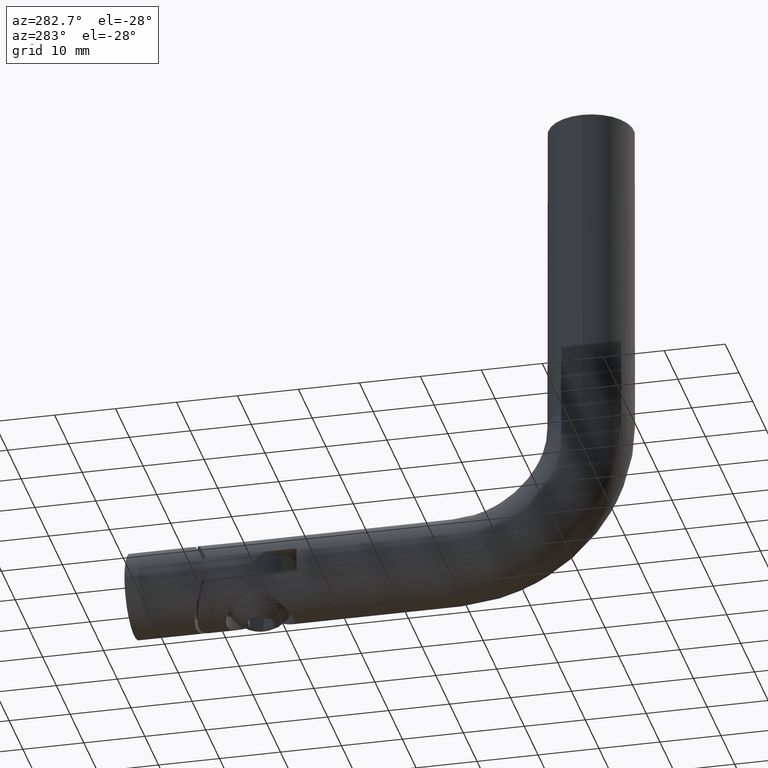
[diagram: clean part render]
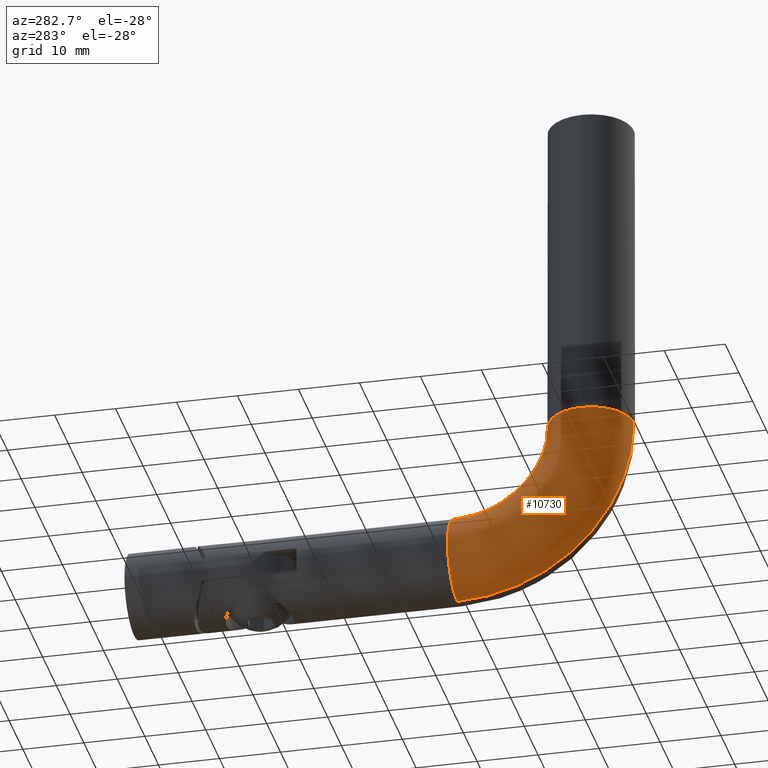
[diagram: same view with one face highlighted and labeled with its STEP entity id]
A machine part, auxiliary view. The second image highlights one B-rep face of the part: STEP entity #10730.
In plain terms, the highlighted toroidal blend (fillet) surface has major radius 22 mm and minor (blend) radius 7 mm.
Its self-contained STEP definition (entity closure, byte-faithful):
#202 = CARTESIAN_POINT ( 'NONE',  ( 0.000000000000000000, 0.000000000000000000, -53.00000000000000000 ) ) ;
#909 = AXIS2_PLACEMENT_3D ( 'NONE', #6194, #14344, #10975 ) ;
#1000 = CARTESIAN_POINT ( 'NONE',  ( -8.572527594031473190E-16, 22.00000000000000000, -53.00000000000000000 ) ) ;
#1047 = CIRCLE ( 'NONE', #6351, 7.000000000000000000 ) ;
#1184 = ORIENTED_EDGE ( 'NONE', *, *, #8646, .F. ) ;
#1646 = AXIS2_PLACEMENT_3D ( 'NONE', #12807, #11626, #15071 ) ;
#4069 = ORIENTED_EDGE ( 'NONE', *, *, #8850, .T. ) ;
#4123 = EDGE_CURVE ( 'NONE', #12789, #8383, #13800, .T. ) ;
#4475 = DIRECTION ( 'NONE',  ( 0.000000000000000000, 0.000000000000000000, -1.000000000000000000 ) ) ;
#4541 = EDGE_CURVE ( 'NONE', #12542, #11029, #7750, .T. ) ;
#4805 = DIRECTION ( 'NONE',  ( 0.000000000000000000, 0.000000000000000000, -1.000000000000000000 ) ) ;
#4819 = DIRECTION ( 'NONE',  ( 1.000000000000000000, 0.000000000000000000, 0.000000000000000000 ) ) ;
#5756 = DIRECTION ( 'NONE',  ( 1.000000000000000000, 0.000000000000000000, -0.000000000000000000 ) ) ;
#6194 = CARTESIAN_POINT ( 'NONE',  ( 0.000000000000000000, 0.000000000000000000, -53.00000000000000000 ) ) ;
#6351 = AXIS2_PLACEMENT_3D ( 'NONE', #202, #8480, #4819 ) ;
#6587 = AXIS2_PLACEMENT_3D ( 'NONE', #9656, #10675, #4805 ) ;
#6609 = ORIENTED_EDGE ( 'NONE', *, *, #4541, .T. ) ;
#6734 = EDGE_LOOP ( 'NONE', ( #1184, #13809, #8642, #4069, #6609 ) ) ;
#6930 = FACE_OUTER_BOUND ( 'NONE', #6734, .T. ) ;
#7750 = CIRCLE ( 'NONE', #1646, 7.000000000000000000 ) ;
#8383 = VERTEX_POINT ( 'NONE', #11780 ) ;
#8480 = DIRECTION ( 'NONE',  ( 0.000000000000000000, 0.000000000000000000, 1.000000000000000000 ) ) ;
#8642 = ORIENTED_EDGE ( 'NONE', *, *, #14422, .F. ) ;
#8646 = EDGE_CURVE ( 'NONE', #8383, #11029, #9529, .T. ) ;
#8850 = EDGE_CURVE ( 'NONE', #11444, #12542, #11715, .T. ) ;
#9422 = DIRECTION ( 'NONE',  ( 1.000000000000000000, 0.000000000000000000, -0.000000000000000000 ) ) ;
#9529 = CIRCLE ( 'NONE', #6587, 28.99999999999998934 ) ;
#9656 = CARTESIAN_POINT ( 'NONE',  ( 0.000000000000000000, 22.00000000000000000, -53.00000000000000000 ) ) ;
#9994 = CARTESIAN_POINT ( 'NONE',  ( -8.572527594031474176E-16, 7.000000000000000888, -53.00000000000000000 ) ) ;
#10064 = CARTESIAN_POINT ( 'NONE',  ( 8.572527594031480092E-16, 22.00000000000000355, -82.00000000000000000 ) ) ;
#10651 = CARTESIAN_POINT ( 'NONE',  ( -7.000000000000000000, 8.572527594031473190E-16, -53.00000000000000000 ) ) ;
#10675 = DIRECTION ( 'NONE',  ( 1.000000000000000000, 0.000000000000000000, -0.000000000000000000 ) ) ;
#10730 = ADVANCED_FACE ( 'NONE', ( #6930 ), #14945, .T. ) ;
#10975 = DIRECTION ( 'NONE',  ( 1.000000000000000000, 0.000000000000000000, 0.000000000000000000 ) ) ;
#11029 = VERTEX_POINT ( 'NONE', #10064 ) ;
#11444 = VERTEX_POINT ( 'NONE', #9994 ) ;
#11626 = DIRECTION ( 'NONE',  ( 0.000000000000000000, -1.000000000000000000, -1.608122649676636601E-16 ) ) ;
#11715 = CIRCLE ( 'NONE', #12951, 15.00000000000000711 ) ;
#11778 = CARTESIAN_POINT ( 'NONE',  ( 0.000000000000000000, 22.00000000000000000, -53.00000000000000000 ) ) ;
#11780 = CARTESIAN_POINT ( 'NONE',  ( 0.000000000000000000, -6.999999999999999112, -53.00000000000000000 ) ) ;
#11798 = CARTESIAN_POINT ( 'NONE',  ( 0.000000000000000000, 22.00000000000000355, -67.99999999999998579 ) ) ;
#11985 = AXIS2_PLACEMENT_3D ( 'NONE', #11778, #9422, #14070 ) ;
#12542 = VERTEX_POINT ( 'NONE', #11798 ) ;
#12789 = VERTEX_POINT ( 'NONE', #10651 ) ;
#12807 = CARTESIAN_POINT ( 'NONE',  ( 0.000000000000000000, 22.00000000000000355, -75.00000000000000000 ) ) ;
#12951 = AXIS2_PLACEMENT_3D ( 'NONE', #1000, #5756, #4475 ) ;
#13800 = CIRCLE ( 'NONE', #909, 7.000000000000000000 ) ;
#13809 = ORIENTED_EDGE ( 'NONE', *, *, #4123, .F. ) ;
#14070 = DIRECTION ( 'NONE',  ( 0.000000000000000000, 0.000000000000000000, -1.000000000000000000 ) ) ;
#14344 = DIRECTION ( 'NONE',  ( 0.000000000000000000, 0.000000000000000000, 1.000000000000000000 ) ) ;
#14422 = EDGE_CURVE ( 'NONE', #11444, #12789, #1047, .T. ) ;
#14945 = TOROIDAL_SURFACE ( 'NONE', #11985, 22.00000000000000000, 7.000000000000000000 ) ;
#15071 = DIRECTION ( 'NONE',  ( 1.000000000000000000, 0.000000000000000000, 0.000000000000000000 ) ) ;